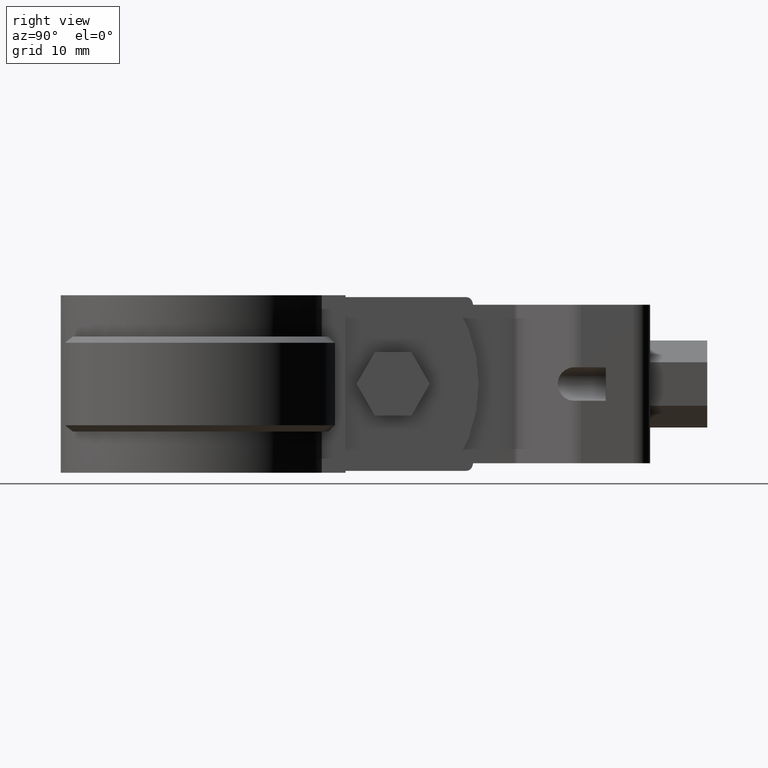
[diagram: clean part render]
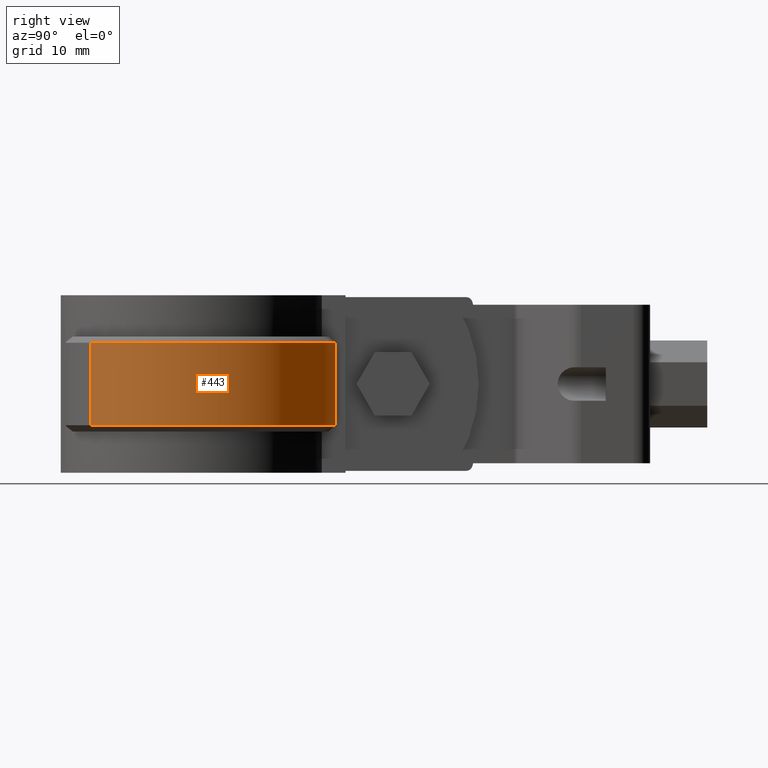
[diagram: same view with one face highlighted and labeled with its STEP entity id]
A machine part, right view. The second image highlights one B-rep face of the part: STEP entity #443.
In plain terms, the highlighted cylindrical surface (partial cylindrical patch) has radius 23.095 mm, axis along (0, 0, -1).
Its self-contained STEP definition (entity closure, byte-faithful):
#443 = ADVANCED_FACE( '', ( #862 ), #863, .T. );
#862 = FACE_OUTER_BOUND( '', #1955, .T. );
#863 = CYLINDRICAL_SURFACE( '', #1956, 23.0950000000000 );
#1955 = EDGE_LOOP( '', ( #4092, #4093, #4094, #4095 ) );
#1956 = AXIS2_PLACEMENT_3D( '', #4096, #4097, #4098 );
#4092 = ORIENTED_EDGE( '', *, *, #6641, .T. );
#4093 = ORIENTED_EDGE( '', *, *, #6642, .T. );
#4094 = ORIENTED_EDGE( '', *, *, #6643, .F. );
#4095 = ORIENTED_EDGE( '', *, *, #6644, .T. );
#4096 = CARTESIAN_POINT( '', ( -8.67361737988404E-016, -6.93889390390723E-015, -20.0000000000000 ) );
#4097 = DIRECTION( '', ( 0.000000000000000, 0.000000000000000, -1.00000000000000 ) );
#4098 = DIRECTION( '', ( 0.275275955036381, 0.961365252429485, 0.000000000000000 ) );
#6641 = EDGE_CURVE( '', #7768, #7769, #7770, .T. );
#6642 = EDGE_CURVE( '', #7769, #7771, #7772, .T. );
#6643 = EDGE_CURVE( '', #7773, #7771, #7774, .T. );
#6644 = EDGE_CURVE( '', #7773, #7768, #7775, .T. );
#7768 = VERTEX_POINT( '', #10865 );
#7769 = VERTEX_POINT( '', #10866 );
#7770 = LINE( '', #10867, #10868 );
#7771 = VERTEX_POINT( '', #10869 );
#7772 = CIRCLE( '', #10870, 23.0950000000000 );
#7773 = VERTEX_POINT( '', #10871 );
#7774 = LINE( '', #10872, #10873 );
#7775 = CIRCLE( '', #10874, 23.0950000000000 );
#10865 = CARTESIAN_POINT( '', ( 6.09999999999997, 22.2748518513592, -19.0000000000000 ) );
#10866 = CARTESIAN_POINT( '', ( 6.09999999999997, 22.2748518513592, -6.00000000000000 ) );
#10867 = CARTESIAN_POINT( '', ( 6.09999999999997, 22.2748518513592, -20.0000000000000 ) );
#10868 = VECTOR( '', #12832, 1000.00000000000 );
#10869 = CARTESIAN_POINT( '', ( 16.4128629004502, -16.2479831490258, -6.00000000000000 ) );
#10870 = AXIS2_PLACEMENT_3D( '', #12833, #12834, #12835 );
#10871 = CARTESIAN_POINT( '', ( 16.4128629004502, -16.2479831490258, -19.0000000000000 ) );
#10872 = CARTESIAN_POINT( '', ( 16.4128629004502, -16.2479831490258, -20.0000000000000 ) );
#10873 = VECTOR( '', #12836, 1000.00000000000 );
#10874 = AXIS2_PLACEMENT_3D( '', #12837, #12838, #12839 );
#12832 = DIRECTION( '', ( 0.000000000000000, 0.000000000000000, 1.00000000000000 ) );
#12833 = CARTESIAN_POINT( '', ( -8.67361737988404E-016, -6.93889390390723E-015, -6.00000000000000 ) );
#12834 = DIRECTION( '', ( 0.000000000000000, 0.000000000000000, -1.00000000000000 ) );
#12835 = DIRECTION( '', ( -1.00000000000000, 0.000000000000000, 0.000000000000000 ) );
#12836 = DIRECTION( '', ( 0.000000000000000, 0.000000000000000, 1.00000000000000 ) );
#12837 = CARTESIAN_POINT( '', ( -8.67361737988404E-016, -6.93889390390723E-015, -19.0000000000000 ) );
#12838 = DIRECTION( '', ( 0.000000000000000, 0.000000000000000, 1.00000000000000 ) );
#12839 = DIRECTION( '', ( 1.00000000000000, 0.000000000000000, 0.000000000000000 ) );